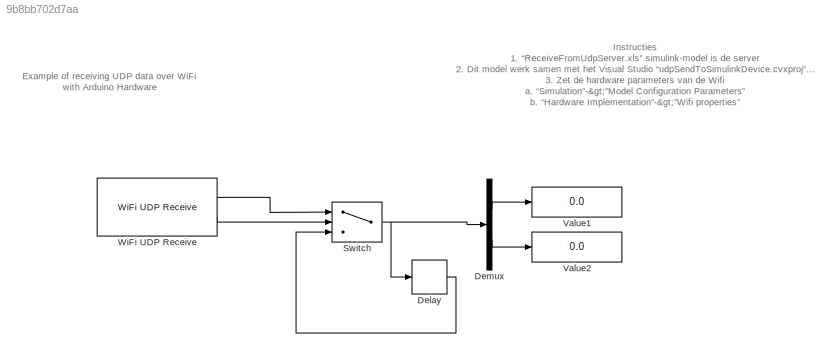
MODEL slx_9b8bb702d7aa
KIND model
CONFIG AbsTol = auto
CONFIG EnableMultiTasking = on
CONFIG FixedStep = auto
CONFIG MaxStep = auto
CONFIG MinStep = auto
CONFIG RelTol = 1e-3
CONFIG SampleTimeConstraint = Unconstrained
CONFIG Solver = FixedStepAuto
CONFIG SolverName = FixedStepAuto
CONFIG StartTime = 0.0
CONFIG StopTime = inf
BLOCK [Delay] Delay
  DelayLength = 1
  InputPortMap = u0
  Ports = [1, 1]
BLOCK [Demux] Demux
  DisplayOption = bar
  Outputs = 2
  Ports = [1, 2]
BLOCK [Switch] Switch
  Criteria = u2 > Threshold
  InputSameDT = off
  SaturateOnIntegerOverflow = off
BLOCK [Display] Value1
  Decimation = 1
  Ports = [1]
BLOCK [Display] Value2
  Decimation = 1
  Ports = [1]
BLOCK [Reference] WiFi UDP Receive  REF=arduinowifilib/WiFi UDP Receive
  Ports = [0, 2]
  SourceBlock = arduinowifilib/WiFi UDP Receive
  SourceProductBaseCode = ARDUINO
  SourceProductName = Simulink Support Package for Arduino Hardware
  SourceType = Arduino WiFi UDP Receive
ANNOTATION (root): Instructies 1. “ReceiveFromUdpServer.xls” simulink-model is de server 2. Dit model werk samen met het Visual Studio “udpSendToSimulinkDevice.cvxproj” voorbeeld(is de client) 3. Zet de hardware parameters van de Wifi a. “Simulation”->”Model Configuration Parameters” b. “Hardware Implementation”->”Wifi properties” c. Vul “Service Set identiefier(SSID)”, “Wifi encryption” en “password” in overeenkoms...<+911ch>
ANNOTATION (root): Example of receiving UDP data over WiFi with Arduino Hardware
LINE Delay:1 -> Switch:3
LINE Demux:1 -> Value1:1
LINE Demux:2 -> Value2:1
NET Switch:1 -> Delay:1, Demux:1
LINE WiFi UDP Receive:1 -> Switch:1
LINE WiFi UDP Receive:2 -> Switch:2
note: NET lines group one-source signal fan-out (src -> all destinations, sorted); 1:1 wires keep LINE
